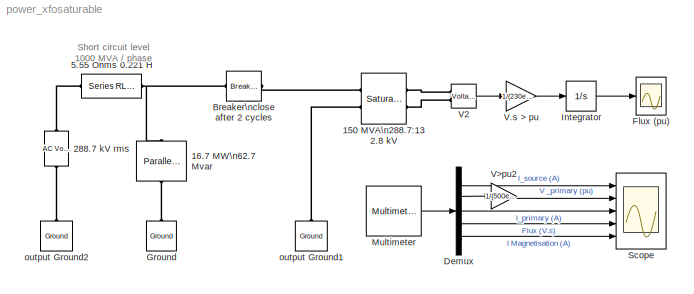
MODEL power_xfosaturable
KIND model
BLOCK [Reference] 150 MVA\n288.7:132.8 kV  REF=powerlib/Elements/Saturable Transformer
  AttributesFormatString = \\n
  CoreLoss = [500 0.8]
  DataFile = 'hysteresis_SI'
  Hysteresis = off
  InitialFlux = 0
  Measurements = All measurements (V I Flux)
  NominalPower = [ 150e6 60 ]
  Ports = [0, 0, 0, 0, 0, 2, 2]
  Saturation = [0 0;  0.0 1.2; 1.0  1.52]
  ShowPortLabels = on
  SourceBlock = powerlib/Elements/Saturable Transformer
  SourceType = Saturable Transformer
  ThreeWindings = off
  TransfoNumber = 1
  Winding1 = [ 500e3/sqrt(3) 0.002 0.08 ]
  Winding2 = [ 230e3/sqrt(3) 0.002 0.08]
  Winding3 = [ 230e3/sqrt(3) 0.002 0.08]
BLOCK [Reference] 16.7 MW\n62.7 Mvar  REF=powerlib/Elements/Parallel RLC Load
  ActivePower = 16.7e6
  AttributesFormatString = \\n
  CapacitivePower = 62.7e6
  InductivePower = 0
  LConnTagsString = a
  LeftPortType = p1
  Measurements = None
  NominalFrequency = 60
  NominalVoltage = 500e3/sqrt(3)
  PhysicalDomain = powersysdomain
  Ports = [0, 0, 0, 0, 0, 1, 1]
  RConnTagsString = __new0
  RightPortType = p1
  SourceBlock = powerlib/Elements/Parallel RLC Load
  SourceType = Parallel RLC Load
  SubClassName = unknown
BLOCK [Reference] 288.7 kV rms  REF=powerlib/Electrical\nSources/AC Voltage Source
  Amplitude = 500e3/sqrt(3)*sqrt(2)
  AttributesFormatString = \\n
  Description = source block
  Frequency = 60
  Measurements = None
  Phase = 0
  Ports = [0, 0, 0, 0, 0, 1, 1]
  SampleTime = 0
  ShowPortLabels = on
  SourceBlock = powerlib/Electrical\nSources/AC Voltage Source
  SourceType = AC Voltage Source
BLOCK [Reference] 5.55 Ohms 0.221 H   REF=powerlib/Elements/Series RLC Branch
  AttributesFormatString = \\n
  Capacitance = inf
  Inductance = 0.221
  LConnTagsString = __new0
  LeftPortType = p1
  Measurements = Branch current
  PhysicalDomain = powersysdomain
  Ports = [0, 0, 0, 0, 0, 1, 1]
  RConnTagsString = __new0
  Resistance = 5.55
  RightPortType = p1
  SourceBlock = powerlib/Elements/Series RLC Branch
  SourceType = Series RLC Branch
  SubClassName = unknown
BLOCK [Reference] Breaker\nclose after 2 cycles  REF=powerlib/Elements/Breaker
  AttributesFormatString = \\n
  BreakerResistance = 0.01
  External = off
  InitialState = 0
  Measurements = None
  Ports = [0, 0, 0, 0, 0, 1, 1]
  ShowPortLabels = on
  SnubberCapacitance = inf
  SnubberResistance = 100e6
  SourceBlock = powerlib/Elements/Breaker
  SourceType = Breaker
  SwitchingTimes = [ 2/60 ]
BLOCK [Demux] Demux
  Outputs = 5
  Ports = [1, 5]
BLOCK [Scope] Flux (pu)
  DataFormat = Array
  DeleteFcn = simscope BlockIsBeingDestroyed
  LimitDataPoints = off
  NumInputPorts = 1
  Ports = [1]
  PostSaveFcn = simscope Save
  TickLabels = on
  TimeRange = 0.5
  YMax = 2.25
  YMin = -0.25
BLOCK [Reference] Ground  REF=powerlib/Elements/Ground
  AttributesFormatString = \\n
  LConnTagsString = a
  LeftPortType = p1
  PhysicalDomain = powersysdomain
  Ports = [0, 0, 0, 0, 0, 1]
  RightPortType = p1
  SourceBlock = powerlib/Elements/Ground
  SourceType = Ground
  SubClassName = unknown
BLOCK [Integrator] Integrator
  InitialCondition = 0.8
  Ports = [1, 1]
BLOCK [Reference] Multimeter  REF=powerlib/Measurements/Multimeter
  AttributesFormatString = \\n
  AxesSetting = [0,0.1,-100,100]
  Display = 0
  Gain = [1 1 1 1 1]
  L = 8
  OutputType = Magnitude
  PSBOutputType = 1
  PSBequivalent = 0
  PhasorSimulation = off
  Ports = [0, 1]
  SavedBlockNames = -11
  ShowPortLabels = on
  SourceBlock = powerlib/Measurements/Multimeter
  SourceType = MultimeterPSB
  Tag = PoWeRsYsTeMmEaSuReMeNt
  sel = [3 1 4 8 7]
  yselected = {'Ib: 5.55 Ohms 0.221 H ','Uw1: 150 MVA 288.7:132.8 kV','Iw1: 150 MVA 288.7:132.8 kV','Flux: 150 MVA 288.7:132.8 kV','Imag: 150 MVA 288.7:132.8 kV'};
BLOCK [Scope] Scope
  DataFormat = StructureWithTime
  DeleteFcn = simscope BlockIsBeingDestroyed
  LimitDataPoints = off
  NumInputPorts = 5
  Ports = [5]
  PostSaveFcn = simscope Save
  SaveName = R
  SaveToWorkspace = on
  TimeRange = 0.5
  YMax = 2500~1.5~2500~2500~2500
  YMin = -500~-1.5~-500~0~-500
BLOCK [Gain] V.s > pu
  Gain = 1/(230e3/sqrt(3)*sqrt(2)/2/pi/60)
BLOCK [Reference] V2  REF=powerlib/Measurements/Voltage Measurement
  AttributesFormatString = \\n
  OutputType = Magnitude
  PSBequivalent = 0
  PhasorSimulation = off
  Ports = [0, 1, 0, 0, 0, 2]
  ShowPortLabels = on
  SourceBlock = powerlib/Measurements/Voltage Measurement
  SourceType = Voltage Measurement
  Tag = PoWeRsYsTeMmEaSuReMeNt
BLOCK [Gain] V>pu2
  Gain = 1/(500e3/sqrt(3)*sqrt(2))
BLOCK [Reference] output Ground1  REF=powerlib/Elements/Ground
  AttributesFormatString = \\n
  LConnTagsString = a
  LeftPortType = p1
  PhysicalDomain = powersysdomain
  Ports = [0, 0, 0, 0, 0, 1]
  RightPortType = p1
  SourceBlock = powerlib/Elements/Ground
  SourceType = Ground
  SubClassName = unknown
BLOCK [Reference] output Ground2  REF=powerlib/Elements/Ground
  AttributesFormatString = \\n
  LConnTagsString = a
  LeftPortType = p1
  PhysicalDomain = powersysdomain
  Ports = [0, 0, 0, 0, 0, 1]
  RightPortType = p1
  SourceBlock = powerlib/Elements/Ground
  SourceType = Ground
  SubClassName = unknown
ANNOTATION (root): Short circuit level\n1000 MVA / phase
LINE Demux:1 -> Scope:1
LINE Demux:2 -> V>pu2:1
LINE Demux:3 -> Scope:3
LINE Demux:4 -> Scope:4
LINE Demux:5 -> Scope:5
LINE Integrator:1 -> Flux (pu):1
LINE Multimeter:1 -> Demux:1
LINE V.s > pu:1 -> Integrator:1
LINE V2:1 -> V.s > pu:1
LINE V>pu2:1 -> Scope:2
PLINE 150 MVA\n288.7:132.8 kV:LConn1 -- Breaker\nclose after 2 cycles:RConn1
PLINE 150 MVA\n288.7:132.8 kV:LConn2 -- output Ground1:LConn1
PLINE 150 MVA\n288.7:132.8 kV:RConn1 -- V2:LConn1
PLINE 150 MVA\n288.7:132.8 kV:RConn2 -- V2:LConn2
PNET net1: 16.7 MW\n62.7 Mvar:LConn1 -- 5.55 Ohms 0.221 H :RConn1 -- Breaker\nclose after 2 cycles:LConn1
PLINE 16.7 MW\n62.7 Mvar:RConn1 -- Ground:LConn1
PLINE 288.7 kV rms:LConn1 -- output Ground2:LConn1
PLINE 288.7 kV rms:RConn1 -- 5.55 Ohms 0.221 H :LConn1
note: PNET lines group multi-terminal physical nets as a canonical sorted terminal list (undirected conserving connections); 2-terminal nets keep the pairwise PLINE form
